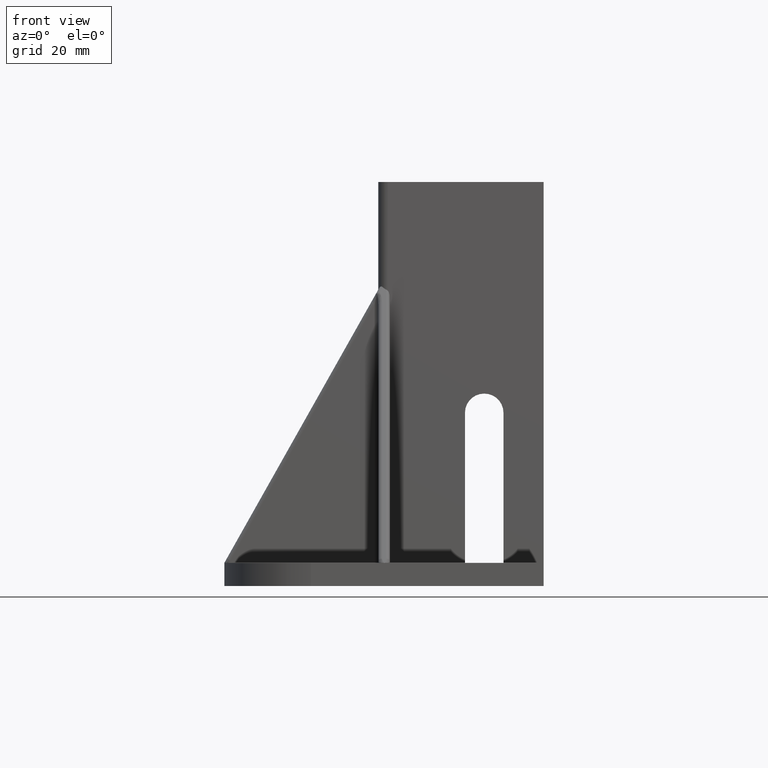
[diagram: clean part render]
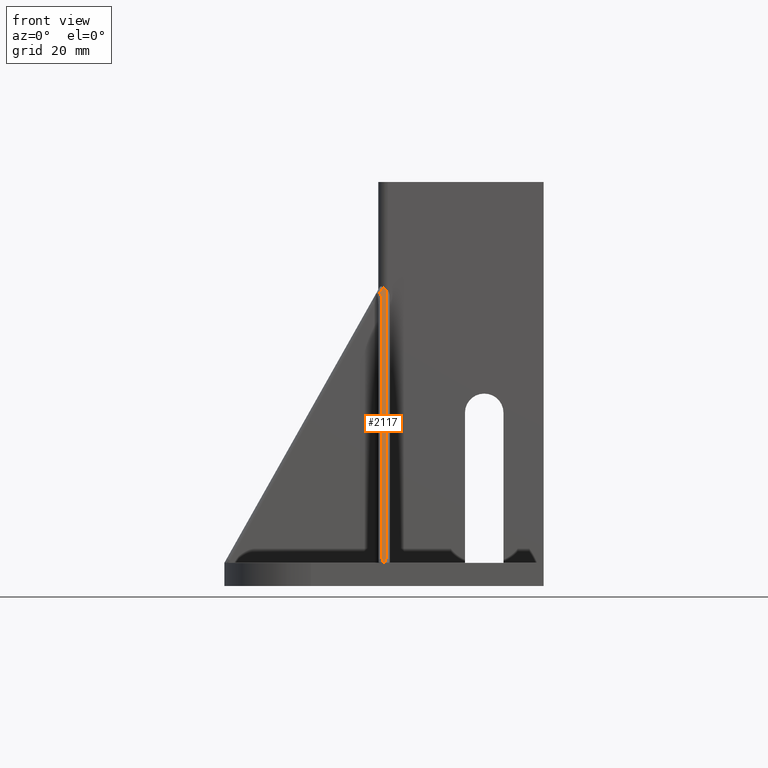
[diagram: same view with one face highlighted and labeled with its STEP entity id]
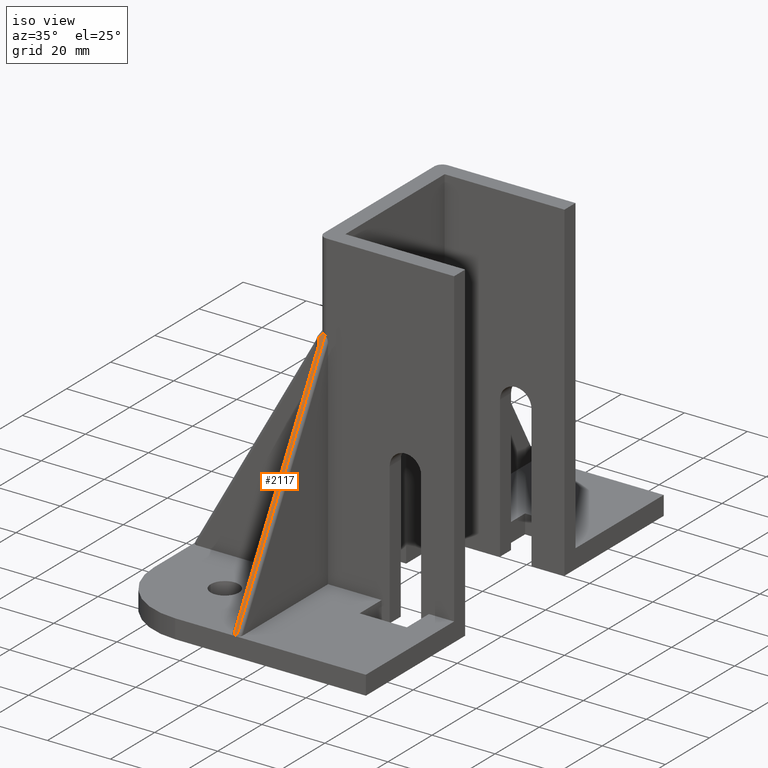
[diagram: same view with one face highlighted and labeled with its STEP entity id]
A machine part, front view. The second image highlights one B-rep face of the part: STEP entity #2117.
A second angle (iso view) of the same face is appended — the face is thin or edge-on in the first view.
In plain terms, the highlighted planar face has unit normal (0, -0.8712, 0.4908).
Its self-contained STEP definition (entity closure, byte-faithful):
#55=B_SPLINE_CURVE_WITH_KNOTS('',3,(#3280,#3281,#3282,#3283,#3284,#3285,
#3286,#3287,#3288,#3289,#3290,#3291,#3292,#3293,#3294,#3295,#3296,#3297,
#3298,#3299,#3300,#3301,#3302,#3303,#3304,#3305,#3306,#3307,#3308,#3309,
#3310,#3311,#3312,#3313,#3314,#3315,#3316,#3317,#3318,#3319,#3320,#3321,
#3322,#3323,#3324,#3325,#3326,#3327,#3328,#3329,#3330,#3331,#3332,#3333,
#3334,#3335,#3336,#3337,#3338,#3339,#3340,#3341,#3342,#3343,#3344,#3345,
#3346),.UNSPECIFIED.,.F.,.F.,(4,3,3,3,3,3,3,3,3,3,3,3,3,3,3,3,3,3,3,3,3,
3,4),(-4.44935997256434,-4.3489894450295,-4.34393060639604,-4.24861898618072,
-4.23850124022772,-4.13307187405941,-4.04787800841099,-4.02764250789109,
-3.92221314172278,-3.84714728183931,-3.81678377555446,-3.75317404399417,
-3.71135440938615,-3.64637992547315,-3.60785202436014,-3.51308999132452,
-3.50434963933411,-3.40084725430809,-3.29734486928207,-3.24491820483094,
-3.19384248425608,-3.07150714865481,-3.06399197544378),.UNSPECIFIED.);
#66=B_SPLINE_CURVE_WITH_KNOTS('',3,(#3619,#3620,#3621,#3622,#3623,#3624,
#3625,#3626,#3627,#3628,#3629,#3630,#3631,#3632,#3633,#3634,#3635,#3636,
#3637,#3638,#3639,#3640,#3641,#3642,#3643,#3644,#3645,#3646,#3647,#3648,
#3649,#3650,#3651,#3652,#3653,#3654,#3655,#3656,#3657,#3658,#3659,#3660,
#3661,#3662,#3663,#3664,#3665,#3666,#3667,#3668,#3669,#3670,#3671,#3672,
#3673,#3674,#3675,#3676,#3677,#3678,#3679,#3680,#3681,#3682,#3683,#3684,
#3685),.UNSPECIFIED.,.F.,.F.,(4,3,3,3,3,3,3,3,3,3,3,3,3,3,3,3,3,3,3,3,3,
3,4),(-2.86848798793035,-2.7461526523301,-2.73863747916311,-2.6875617585421,
-2.63513509413708,-2.53163270911107,-2.42813032408504,-2.33336829106696,
-2.32462793905901,-2.2861000379153,-2.22112555403299,-2.15751582245693,
-2.11569618786468,-2.0853326815567,-2.01026682169636,-1.90483745552804,
-1.8846019549928,-1.79940808935973,-1.69397872319141,-1.68386097723071,
-1.58854935702309,-1.58349051838577,-1.48311999085477),.UNSPECIFIED.);
#159=ELLIPSE('',#2262,5.09327067204403,2.5);
#161=ELLIPSE('',#2288,4.07849258141694,2.0031860029448);
#203=PLANE('',#2287);
#285=FACE_OUTER_BOUND('',#395,.T.);
#395=EDGE_LOOP('',(#1798,#1799,#1800,#1801,#1802,#1803,#1804));
#550=LINE('',#3077,#717);
#557=LINE('',#3689,#724);
#570=LINE('',#4774,#737);
#717=VECTOR('',#2564,80.314118931303);
#724=VECTOR('',#2587,76.398907282235);
#737=VECTOR('',#2640,1.83411330068767);
#917=VERTEX_POINT('',#3069);
#918=VERTEX_POINT('',#3076);
#925=VERTEX_POINT('',#3279);
#934=VERTEX_POINT('',#3618);
#935=VERTEX_POINT('',#3688);
#959=VERTEX_POINT('',#4744);
#964=VERTEX_POINT('',#4772);
#1178=EDGE_CURVE('',#917,#918,#550,.T.);
#1189=EDGE_CURVE('',#918,#925,#55,.T.);
#1200=EDGE_CURVE('',#925,#934,#66,.T.);
#1202=EDGE_CURVE('',#935,#934,#557,.T.);
#1237=EDGE_CURVE('',#917,#959,#159,.T.);
#1244=EDGE_CURVE('',#964,#959,#570,.T.);
#1280=EDGE_CURVE('',#935,#964,#161,.T.);
#1798=ORIENTED_EDGE('',*,*,#1200,.F.);
#1799=ORIENTED_EDGE('',*,*,#1189,.F.);
#1800=ORIENTED_EDGE('',*,*,#1178,.F.);
#1801=ORIENTED_EDGE('',*,*,#1237,.T.);
#1802=ORIENTED_EDGE('',*,*,#1244,.F.);
#1803=ORIENTED_EDGE('',*,*,#1280,.F.);
#1804=ORIENTED_EDGE('',*,*,#1202,.T.);
#2117=ADVANCED_FACE('',(#285),#203,.T.);
#2262=AXIS2_PLACEMENT_3D('',#4755,#2626,#2627);
#2287=AXIS2_PLACEMENT_3D('',#5521,#2697,#2698);
#2288=AXIS2_PLACEMENT_3D('',#5522,#2699,#2700);
#2564=DIRECTION('',(0.,-0.490843734993707,-0.871247627151677));
#2587=DIRECTION('',(-3.48766147826824E-16,-0.490843734993707,-0.871247627151677));
#2626=DIRECTION('center_axis',(-5.836254E-16,0.871247627151677,-0.490843734993707));
#2627=DIRECTION('ref_axis',(-3.28803E-16,0.490843734993707,0.871247627151677));
#2640=DIRECTION('',(0.440625912628311,0.440625914085759,0.782110995291945));
#2697=DIRECTION('center_axis',(5.836254E-16,-0.871247627151677,0.490843734993707));
#2698=DIRECTION('ref_axis',(0.,-0.490843734993707,-0.871247627151677));
#2699=DIRECTION('center_axis',(5.44363194413469E-12,-0.871247627151136,
0.490843734994667));
#2700=DIRECTION('ref_axis',(-0.000388488166475899,-0.490843697954849,-0.871247561405456));
#3069=CARTESIAN_POINT('',(-25.499950999902,-94.9492985176483,77.0895038799385));
#3076=CARTESIAN_POINT('',(-25.499950999902,-134.370980626618,7.11601833426319));
#3077=CARTESIAN_POINT('',(-25.499950999902,-94.9492985176483,77.0895038799385));
#3279=CARTESIAN_POINT('',(-25.9999479999248,-134.938720073587,6.10828081874111));
#3280=CARTESIAN_POINT('Ctrl Pts',(-25.499950999902,-134.370980626618,7.11601833426319));
#3281=CARTESIAN_POINT('Ctrl Pts',(-25.4999387659447,-134.388697861341,7.08457024271951));
#3282=CARTESIAN_POINT('Ctrl Pts',(-25.5008898333431,-134.406414846684,7.05312259382695));
#3283=CARTESIAN_POINT('Ctrl Pts',(-25.5027719115494,-134.424032287538,7.02185163639403));
#3284=CARTESIAN_POINT('Ctrl Pts',(-25.5028667713671,-134.424920235351,7.02027552903012));
#3285=CARTESIAN_POINT('Ctrl Pts',(-25.5029639874538,-134.425807930375,7.01869987036624));
#3286=CARTESIAN_POINT('Ctrl Pts',(-25.503063558786,-134.426695350819,7.0171246990828));
#3287=CARTESIAN_POINT('Ctrl Pts',(-25.5049395437073,-134.443414895842,6.98744750674306));
#3288=CARTESIAN_POINT('Ctrl Pts',(-25.5076587213449,-134.460039999266,6.95793794825959));
#3289=CARTESIAN_POINT('Ctrl Pts',(-25.5112087978703,-134.476485088002,6.92874791583558));
#3290=CARTESIAN_POINT('Ctrl Pts',(-25.5115856540429,-134.478230806201,6.92564926604075));
#3291=CARTESIAN_POINT('Ctrl Pts',(-25.5119718630022,-134.479974500987,6.92255420780429));
#3292=CARTESIAN_POINT('Ctrl Pts',(-25.512367391775,-134.481716065086,6.9194629315376));
#3293=CARTESIAN_POINT('Ctrl Pts',(-25.516488897495,-134.499863585289,6.88725108327001));
#3294=CARTESIAN_POINT('Ctrl Pts',(-25.5216239056838,-134.517779853996,6.8554497064186));
#3295=CARTESIAN_POINT('Ctrl Pts',(-25.5277433492934,-134.535357534835,6.82424932302103));
#3296=CARTESIAN_POINT('Ctrl Pts',(-25.5326882624203,-134.549561457653,6.79903736009308));
#3297=CARTESIAN_POINT('Ctrl Pts',(-25.538276175428,-134.563544287189,6.77421783771984));
#3298=CARTESIAN_POINT('Ctrl Pts',(-25.5444738297671,-134.57724148374,6.74990531389109));
#3299=CARTESIAN_POINT('Ctrl Pts',(-25.545945915071,-134.58049488263,6.74413053087318));
#3300=CARTESIAN_POINT('Ctrl Pts',(-25.5474523506287,-134.583732196109,6.73838429946083));
#3301=CARTESIAN_POINT('Ctrl Pts',(-25.5489929072557,-134.586952519843,6.7326682248488));
#3302=CARTESIAN_POINT('Ctrl Pts',(-25.5570193906416,-134.603730789784,6.70288679578435));
#3303=CARTESIAN_POINT('Ctrl Pts',(-25.5659679423234,-134.620048753959,6.67392240948166));
#3304=CARTESIAN_POINT('Ctrl Pts',(-25.5758450262895,-134.635860169206,6.64585714749754));
#3305=CARTESIAN_POINT('Ctrl Pts',(-25.5828775242358,-134.647117919534,6.62587464072301));
#3306=CARTESIAN_POINT('Ctrl Pts',(-25.5903870684956,-134.658126285621,6.6063347907557));
#3307=CARTESIAN_POINT('Ctrl Pts',(-25.5982767235735,-134.668753403517,6.58747165648886));
#3308=CARTESIAN_POINT('Ctrl Pts',(-25.6014680224131,-134.673051982945,6.57984167800394));
#3309=CARTESIAN_POINT('Ctrl Pts',(-25.6047210129033,-134.677288453258,6.57232194324357));
#3310=CARTESIAN_POINT('Ctrl Pts',(-25.6080307201911,-134.681460651478,6.56491629156356));
#3311=CARTESIAN_POINT('Ctrl Pts',(-25.6149643592164,-134.690201157476,6.54940189375405));
#3312=CARTESIAN_POINT('Ctrl Pts',(-25.6221484091002,-134.698644012106,6.53441582789919));
#3313=CARTESIAN_POINT('Ctrl Pts',(-25.6296786826523,-134.706952947934,6.51966746652581));
#3314=CARTESIAN_POINT('Ctrl Pts',(-25.6346293919341,-134.712415581588,6.50997129160771));
#3315=CARTESIAN_POINT('Ctrl Pts',(-25.63973052694,-134.7178199359,6.50037856202791));
#3316=CARTESIAN_POINT('Ctrl Pts',(-25.6450201841727,-134.723209765149,6.49081161513771));
#3317=CARTESIAN_POINT('Ctrl Pts',(-25.6532386383028,-134.731583854907,6.47594760585978));
#3318=CARTESIAN_POINT('Ctrl Pts',(-25.6619139194052,-134.739911506346,6.46116602530045));
#3319=CARTESIAN_POINT('Ctrl Pts',(-25.6709958066617,-134.748159122347,6.44652651213661));
#3320=CARTESIAN_POINT('Ctrl Pts',(-25.6763810907466,-134.753049708844,6.43784572420955));
#3321=CARTESIAN_POINT('Ctrl Pts',(-25.6819087472676,-134.757912137546,6.42921491797717));
#3322=CARTESIAN_POINT('Ctrl Pts',(-25.6875531102918,-134.762728271354,6.42066628527403));
#3323=CARTESIAN_POINT('Ctrl Pts',(-25.7014358108782,-134.774573884995,6.3996403328805));
#3324=CARTESIAN_POINT('Ctrl Pts',(-25.7161129082248,-134.78615324873,6.37908696164004));
#3325=CARTESIAN_POINT('Ctrl Pts',(-25.7315741097796,-134.797481134096,6.35897996128484));
#3326=CARTESIAN_POINT('Ctrl Pts',(-25.7330001697685,-134.798525958719,6.35712539722637));
#3327=CARTESIAN_POINT('Ctrl Pts',(-25.7344329359422,-134.799568647473,6.35527462430441));
#3328=CARTESIAN_POINT('Ctrl Pts',(-25.7358724216571,-134.800609213659,6.3534276189177));
#3329=CARTESIAN_POINT('Ctrl Pts',(-25.7529186693212,-134.812931495661,6.3315555635485));
#3330=CARTESIAN_POINT('Ctrl Pts',(-25.7709012688883,-134.824955590007,6.31021278795046));
#3331=CARTESIAN_POINT('Ctrl Pts',(-25.7897620450068,-134.836634155061,6.28948333077308));
#3332=CARTESIAN_POINT('Ctrl Pts',(-25.8086228211253,-134.848312720115,6.2687538735957));
#3333=CARTESIAN_POINT('Ctrl Pts',(-25.8283617737951,-134.859645755715,6.24863773474694));
#3334=CARTESIAN_POINT('Ctrl Pts',(-25.8489273627894,-134.870606160098,6.22918301618413));
#3335=CARTESIAN_POINT('Ctrl Pts',(-25.8593443713749,-134.876157891517,6.21932869251973));
#3336=CARTESIAN_POINT('Ctrl Pts',(-25.8699712470519,-134.881617551063,6.2096377962995));
#3337=CARTESIAN_POINT('Ctrl Pts',(-25.8807995564927,-134.886976758645,6.20012520266582));
#3338=CARTESIAN_POINT('Ctrl Pts',(-25.8913488392497,-134.892197868778,6.19085773201013));
#3339=CARTESIAN_POINT('Ctrl Pts',(-25.9020893344454,-134.897323659065,6.18175945430966));
#3340=CARTESIAN_POINT('Ctrl Pts',(-25.9130200008754,-134.90235247105,6.17283331306121));
#3341=CARTESIAN_POINT('Ctrl Pts',(-25.939200869809,-134.914397360382,6.15145363455718));
#3342=CARTESIAN_POINT('Ctrl Pts',(-25.9664766569332,-134.9258685625,6.1310922508567));
#3343=CARTESIAN_POINT('Ctrl Pts',(-25.9947242206359,-134.936729734847,6.11181366999414));
#3344=CARTESIAN_POINT('Ctrl Pts',(-25.9964594946921,-134.937396946745,6.11062936887841));
#3345=CARTESIAN_POINT('Ctrl Pts',(-25.998198427587,-134.938061863516,6.10944914161445));
#3346=CARTESIAN_POINT('Ctrl Pts',(-25.9999409872753,-134.938724479338,6.10827299853316));
#3618=CARTESIAN_POINT('',(-26.49994499989,-134.370980626618,7.11601833426322));
#3619=CARTESIAN_POINT('Ctrl Pts',(-25.999955012575,-134.938724479338,6.10827299853292));
#3620=CARTESIAN_POINT('Ctrl Pts',(-26.0283211750392,-134.927938123956,6.12741877928211));
#3621=CARTESIAN_POINT('Ctrl Pts',(-26.05572411499,-134.916540186678,6.14765011789377));
#3622=CARTESIAN_POINT('Ctrl Pts',(-26.0820387185116,-134.904565768684,6.16890470977291));
#3623=CARTESIAN_POINT('Ctrl Pts',(-26.0836552490202,-134.903830169077,6.17021039907176));
#3624=CARTESIAN_POINT('Ctrl Pts',(-26.0852676838673,-134.903092399785,6.17151993956125));
#3625=CARTESIAN_POINT('Ctrl Pts',(-26.086875998936,-134.902352471058,6.17283331304765));
#3626=CARTESIAN_POINT('Ctrl Pts',(-26.0978066653749,-134.897323659068,6.18175945430504));
#3627=CARTESIAN_POINT('Ctrl Pts',(-26.1085471605792,-134.892197868775,6.19085773201474));
#3628=CARTESIAN_POINT('Ctrl Pts',(-26.1190964433444,-134.886976758638,6.2001252026799));
#3629=CARTESIAN_POINT('Ctrl Pts',(-26.1299247527744,-134.88161755106,6.20963779630634));
#3630=CARTESIAN_POINT('Ctrl Pts',(-26.1405516284409,-134.876157891518,6.21932869251896));
#3631=CARTESIAN_POINT('Ctrl Pts',(-26.1509686370164,-134.870606160103,6.2291830161754));
#3632=CARTESIAN_POINT('Ctrl Pts',(-26.1715342260089,-134.859645755719,6.24863773473962));
#3633=CARTESIAN_POINT('Ctrl Pts',(-26.1912731786772,-134.848312720119,6.26875387358959));
#3634=CARTESIAN_POINT('Ctrl Pts',(-26.2101339547942,-134.836634155064,6.28948333076801));
#3635=CARTESIAN_POINT('Ctrl Pts',(-26.2289947309112,-134.824955590009,6.31021278794642));
#3636=CARTESIAN_POINT('Ctrl Pts',(-26.2469773304769,-134.812931495663,6.33155556354532));
#3637=CARTESIAN_POINT('Ctrl Pts',(-26.2640235781398,-134.800609213661,6.35342761891521));
#3638=CARTESIAN_POINT('Ctrl Pts',(-26.2796303400851,-134.789327497846,6.37345266889462));
#3639=CARTESIAN_POINT('Ctrl Pts',(-26.2944513889993,-134.777795927024,6.39392120899331));
#3640=CARTESIAN_POINT('Ctrl Pts',(-26.3084811306691,-134.765999230526,6.41486033569935));
#3641=CARTESIAN_POINT('Ctrl Pts',(-26.3097751603228,-134.764911165226,6.41679165072416));
#3642=CARTESIAN_POINT('Ctrl Pts',(-26.3110624221456,-134.763820848515,6.41872696190348));
#3643=CARTESIAN_POINT('Ctrl Pts',(-26.3123428895021,-134.762728271355,6.42066628527317));
#3644=CARTESIAN_POINT('Ctrl Pts',(-26.3179872525305,-134.757912137543,6.42921491798328));
#3645=CARTESIAN_POINT('Ctrl Pts',(-26.3235149090555,-134.753049708837,6.43784572422275));
#3646=CARTESIAN_POINT('Ctrl Pts',(-26.3289001931442,-134.748159122335,6.44652651215692));
#3647=CARTESIAN_POINT('Ctrl Pts',(-26.3379820803957,-134.739911506338,6.46116602531417));
#3648=CARTESIAN_POINT('Ctrl Pts',(-26.3466573614935,-134.731583854903,6.47594760586662));
#3649=CARTESIAN_POINT('Ctrl Pts',(-26.3548758156197,-134.723209765149,6.49081161513758));
#3650=CARTESIAN_POINT('Ctrl Pts',(-26.3629216457625,-134.715011568417,6.50536341429589));
#3651=CARTESIAN_POINT('Ctrl Pts',(-26.3705336195028,-134.706780209747,6.51997407713157));
#3652=CARTESIAN_POINT('Ctrl Pts',(-26.3778374373954,-134.698360120915,6.53491973443416));
#3653=CARTESIAN_POINT('Ctrl Pts',(-26.3826392654778,-134.692824410742,6.54474561974526));
#3654=CARTESIAN_POINT('Ctrl Pts',(-26.3873068222183,-134.687207016979,6.55471649302021));
#3655=CARTESIAN_POINT('Ctrl Pts',(-26.3918652796009,-134.681460651478,6.56491629156356));
#3656=CARTESIAN_POINT('Ctrl Pts',(-26.3951749868912,-134.677288453255,6.5723219432492));
#3657=CARTESIAN_POINT('Ctrl Pts',(-26.3984279773838,-134.673051982939,6.57984167801536));
#3658=CARTESIAN_POINT('Ctrl Pts',(-26.4016192762258,-134.668753403508,6.58747165650625));
#3659=CARTESIAN_POINT('Ctrl Pts',(-26.4095089313009,-134.658126285614,6.60633479076767));
#3660=CARTESIAN_POINT('Ctrl Pts',(-26.4170184755583,-134.64711791953,6.62587464072921));
#3661=CARTESIAN_POINT('Ctrl Pts',(-26.4240509735023,-134.635860169206,6.64585714749759));
#3662=CARTESIAN_POINT('Ctrl Pts',(-26.4339280574684,-134.620048753959,6.67392240948174));
#3663=CARTESIAN_POINT('Ctrl Pts',(-26.4428766091502,-134.603730789784,6.70288679578439));
#3664=CARTESIAN_POINT('Ctrl Pts',(-26.4509030925362,-134.586952519843,6.73266822484884));
#3665=CARTESIAN_POINT('Ctrl Pts',(-26.4524436491643,-134.583732196107,6.7383842994652));
#3666=CARTESIAN_POINT('Ctrl Pts',(-26.4539500847232,-134.580494882625,6.74413053088194));
#3667=CARTESIAN_POINT('Ctrl Pts',(-26.4554221700281,-134.577241483733,6.74990531390428));
#3668=CARTESIAN_POINT('Ctrl Pts',(-26.461619824366,-134.563544287184,6.77421783772883));
#3669=CARTESIAN_POINT('Ctrl Pts',(-26.4672077373725,-134.549561457651,6.79903736009765));
#3670=CARTESIAN_POINT('Ctrl Pts',(-26.4721526504985,-134.535357534835,6.82424932302105));
#3671=CARTESIAN_POINT('Ctrl Pts',(-26.4782720941081,-134.517779853996,6.85544970641861));
#3672=CARTESIAN_POINT('Ctrl Pts',(-26.483407102297,-134.499863585289,6.88725108327003));
#3673=CARTESIAN_POINT('Ctrl Pts',(-26.487528608017,-134.481716065086,6.91946293153761));
#3674=CARTESIAN_POINT('Ctrl Pts',(-26.4879241367901,-134.479974500986,6.92255420780664));
#3675=CARTESIAN_POINT('Ctrl Pts',(-26.4883103457497,-134.478230806199,6.92564926604546));
#3676=CARTESIAN_POINT('Ctrl Pts',(-26.4886872019226,-134.476485087998,6.92874791584266));
#3677=CARTESIAN_POINT('Ctrl Pts',(-26.4922372784476,-134.460039999263,6.95793794826435));
#3678=CARTESIAN_POINT('Ctrl Pts',(-26.4949564560849,-134.443414895841,6.98744750674545));
#3679=CARTESIAN_POINT('Ctrl Pts',(-26.496832441006,-134.426695350819,7.0171246990828));
#3680=CARTESIAN_POINT('Ctrl Pts',(-26.4969320123383,-134.425807930374,7.01869987036744));
#3681=CARTESIAN_POINT('Ctrl Pts',(-26.4970292284251,-134.424920235349,7.02027552903253));
#3682=CARTESIAN_POINT('Ctrl Pts',(-26.4971240882428,-134.424032287536,7.02185163639764));
#3683=CARTESIAN_POINT('Ctrl Pts',(-26.4990061664489,-134.406414846682,7.05312259382939));
#3684=CARTESIAN_POINT('Ctrl Pts',(-26.499957233847,-134.38869786134,7.08457024272075));
#3685=CARTESIAN_POINT('Ctrl Pts',(-26.49994499989,-134.370980626618,7.11601833426322));
#3688=CARTESIAN_POINT('',(-26.4999449998899,-96.8710556267678,73.6783850208914));
#3689=CARTESIAN_POINT('',(-26.4999449998899,-96.8710556267678,73.6783850208914));
#4744=CARTESIAN_POINT('',(-26.2775730480209,-94.6486856511546,77.623091716457));
#4755=CARTESIAN_POINT('Origin',(-24.9999449998899,-92.4998099996202,81.4373459871515));
#4772=CARTESIAN_POINT('',(-27.0857308358026,-95.4568434948933,76.1886115477629));
#4774=CARTESIAN_POINT('',(-27.0857308879993,-95.4568434971259,76.1886115439117));
#5521=CARTESIAN_POINT('Origin',(67.49986499973,-134.9997301125,5.99998799997638));
#5522=CARTESIAN_POINT('Origin',(-28.5031314773564,-96.8723182117633,73.6761439325528));